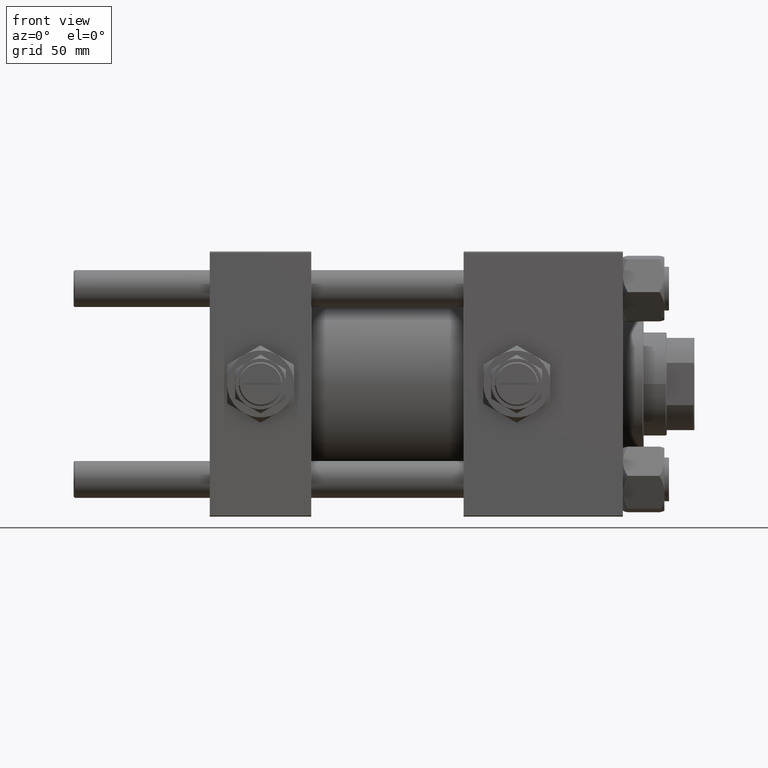
[diagram: clean part render]
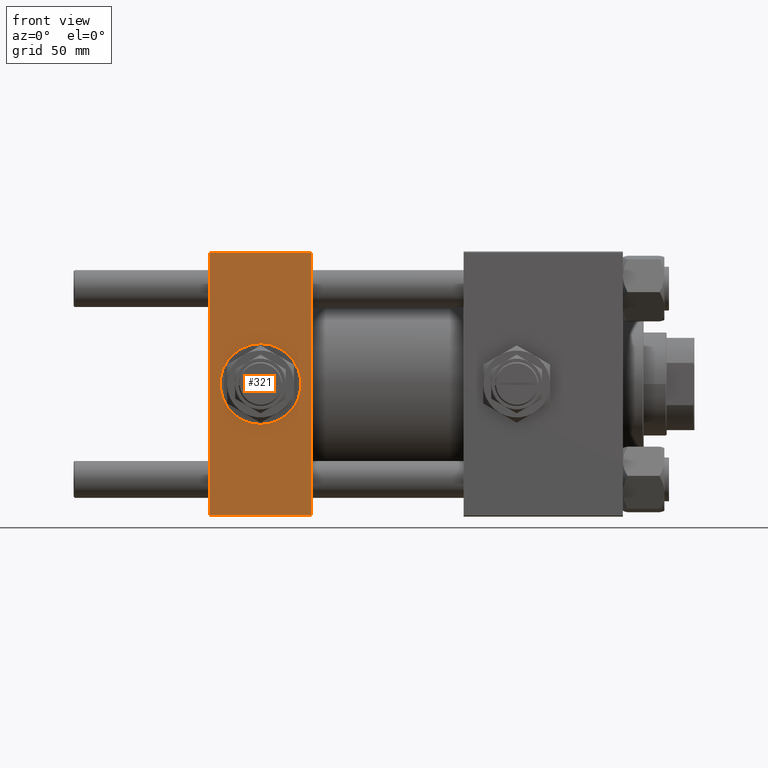
[diagram: same view with one face highlighted and labeled with its STEP entity id]
A machine part, front view. The second image highlights one B-rep face of the part: STEP entity #321.
In plain terms, the highlighted planar face has unit normal (0, 1, 0).
Its self-contained STEP definition (entity closure, byte-faithful):
#321 = ADVANCED_FACE ( 'NONE', ( #8426, #16114 ), #20617, .F. ) ;
#888 = CARTESIAN_POINT ( 'NONE',  ( 44.00000000000000000, -57.50000000000000711, 57.49999999999999289 ) ) ;
#1369 = VERTEX_POINT ( 'NONE', #19877 ) ;
#2038 = EDGE_CURVE ( 'NONE', #20277, #1369, #44881, .T. ) ;
#2163 = CARTESIAN_POINT ( 'NONE',  ( 44.00000000000000000, -57.50000000000000711, -57.00000000000000711 ) ) ;
#4689 = DIRECTION ( 'NONE',  ( 0.000000000000000000, 0.000000000000000000, -1.000000000000000000 ) ) ;
#5925 = AXIS2_PLACEMENT_3D ( 'NONE', #41874, #21715, #6571 ) ;
#5961 = ORIENTED_EDGE ( 'NONE', *, *, #45001, .F. ) ;
#6571 = DIRECTION ( 'NONE',  ( 0.000000000000000000, 0.000000000000000000, -1.000000000000000000 ) ) ;
#6929 = VECTOR ( 'NONE', #21806, 1000.000000000000000 ) ;
#7893 = DIRECTION ( 'NONE',  ( -0.000000000000000000, 1.000000000000000000, 0.000000000000000000 ) ) ;
#8220 = ORIENTED_EDGE ( 'NONE', *, *, #8259, .T. ) ;
#8259 = EDGE_CURVE ( 'NONE', #45416, #32051, #45570, .T. ) ;
#8426 = FACE_BOUND ( 'NONE', #33250, .T. ) ;
#11021 = EDGE_CURVE ( 'NONE', #45416, #34181, #33986, .T. ) ;
#13111 = VECTOR ( 'NONE', #50652, 1000.000000000000000 ) ;
#16114 = FACE_OUTER_BOUND ( 'NONE', #44489, .T. ) ;
#17189 = EDGE_CURVE ( 'NONE', #47700, #34181, #38463, .T. ) ;
#17191 = DIRECTION ( 'NONE',  ( -1.000000000000000000, 0.000000000000000000, 0.000000000000000000 ) ) ;
#17913 = CARTESIAN_POINT ( 'NONE',  ( 0.000000000000000000, -57.50000000000000711, 57.49999999999999289 ) ) ;
#18555 = AXIS2_PLACEMENT_3D ( 'NONE', #20355, #7893, #52431 ) ;
#19877 = CARTESIAN_POINT ( 'NONE',  ( 22.00000000000000000, -57.50000000000000711, -17.50000000000000000 ) ) ;
#20085 = CARTESIAN_POINT ( 'NONE',  ( 44.00000000000000000, -57.50000000000000711, 57.00000000000000711 ) ) ;
#20277 = VERTEX_POINT ( 'NONE', #50392 ) ;
#20355 = CARTESIAN_POINT ( 'NONE',  ( 44.00000000000000000, -57.50000000000000711, 57.49999999999999289 ) ) ;
#20617 = PLANE ( 'NONE',  #18555 ) ;
#21239 = CARTESIAN_POINT ( 'NONE',  ( 0.000000000000000000, -57.50000000000000711, -57.00000000000000711 ) ) ;
#21606 = ORIENTED_EDGE ( 'NONE', *, *, #17189, .T. ) ;
#21715 = DIRECTION ( 'NONE',  ( 0.000000000000000000, -1.000000000000000000, -8.673617379884036705E-17 ) ) ;
#21806 = DIRECTION ( 'NONE',  ( 0.000000000000000000, 0.000000000000000000, -1.000000000000000000 ) ) ;
#23483 = ORIENTED_EDGE ( 'NONE', *, *, #11021, .F. ) ;
#24596 = CARTESIAN_POINT ( 'NONE',  ( 44.00000000000000000, -57.50000000000000711, -57.00000000000000711 ) ) ;
#24967 = DIRECTION ( 'NONE',  ( 0.000000000000000000, -1.000000000000000000, -8.673617379884036705E-17 ) ) ;
#32051 = VERTEX_POINT ( 'NONE', #32291 ) ;
#32291 = CARTESIAN_POINT ( 'NONE',  ( 0.000000000000000000, -57.50000000000000711, 57.00000000000000711 ) ) ;
#33250 = EDGE_LOOP ( 'NONE', ( #5961, #37245 ) ) ;
#33567 = LINE ( 'NONE', #17913, #50563 ) ;
#33705 = CARTESIAN_POINT ( 'NONE',  ( 22.00000000000000000, -57.50000000000000711, 0.000000000000000000 ) ) ;
#33986 = LINE ( 'NONE', #888, #6929 ) ;
#34181 = VERTEX_POINT ( 'NONE', #24596 ) ;
#34620 = AXIS2_PLACEMENT_3D ( 'NONE', #33705, #24967, #41160 ) ;
#37245 = ORIENTED_EDGE ( 'NONE', *, *, #2038, .F. ) ;
#38463 = LINE ( 'NONE', #2163, #13111 ) ;
#40743 = EDGE_CURVE ( 'NONE', #32051, #47700, #33567, .T. ) ;
#41160 = DIRECTION ( 'NONE',  ( 0.000000000000000000, 0.000000000000000000, -1.000000000000000000 ) ) ;
#41874 = CARTESIAN_POINT ( 'NONE',  ( 22.00000000000000000, -57.50000000000000711, 0.000000000000000000 ) ) ;
#43093 = ORIENTED_EDGE ( 'NONE', *, *, #40743, .T. ) ;
#44489 = EDGE_LOOP ( 'NONE', ( #43093, #21606, #23483, #8220 ) ) ;
#44881 = CIRCLE ( 'NONE', #5925, 17.50000000000000000 ) ;
#45001 = EDGE_CURVE ( 'NONE', #1369, #20277, #47347, .T. ) ;
#45416 = VERTEX_POINT ( 'NONE', #20085 ) ;
#45570 = LINE ( 'NONE', #49275, #51697 ) ;
#47347 = CIRCLE ( 'NONE', #34620, 17.50000000000000000 ) ;
#47700 = VERTEX_POINT ( 'NONE', #21239 ) ;
#49275 = CARTESIAN_POINT ( 'NONE',  ( 44.00000000000000000, -57.50000000000000711, 57.00000000000000711 ) ) ;
#50392 = CARTESIAN_POINT ( 'NONE',  ( 22.00000000000000355, -57.50000000000000711, 17.50000000000000000 ) ) ;
#50563 = VECTOR ( 'NONE', #4689, 1000.000000000000000 ) ;
#50652 = DIRECTION ( 'NONE',  ( 1.000000000000000000, 0.000000000000000000, 0.000000000000000000 ) ) ;
#51697 = VECTOR ( 'NONE', #17191, 1000.000000000000000 ) ;
#52431 = DIRECTION ( 'NONE',  ( 0.000000000000000000, -0.000000000000000000, 1.000000000000000000 ) ) ;